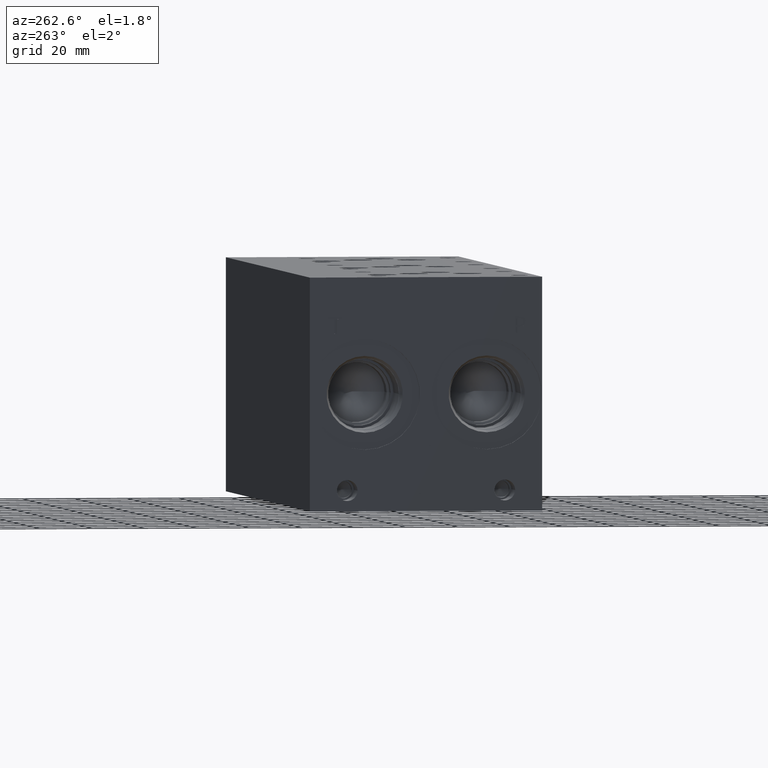
[diagram: clean part render]
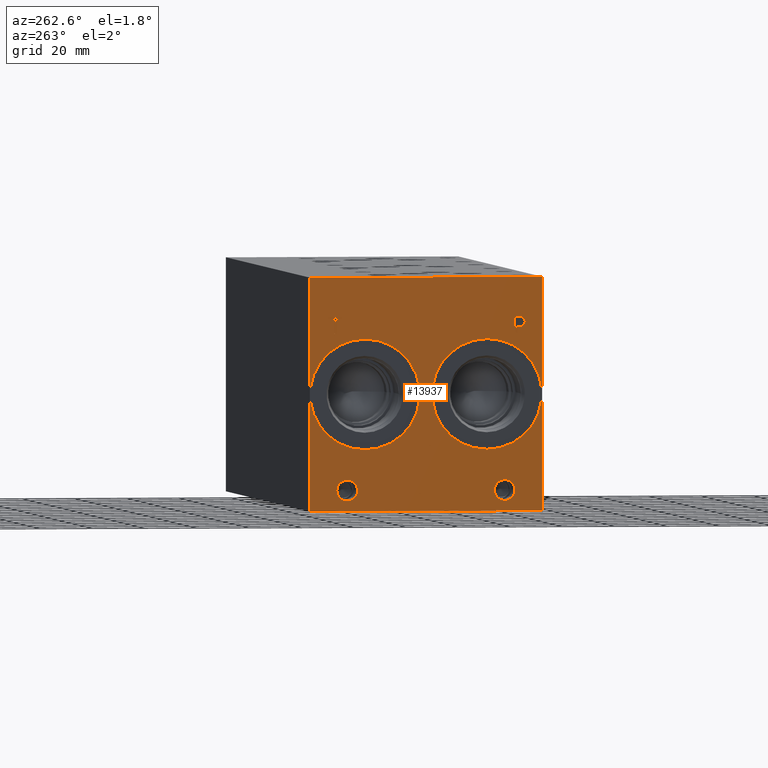
[diagram: same view with one face highlighted and labeled with its STEP entity id]
A machine part, auxiliary view. The second image highlights one B-rep face of the part: STEP entity #13937.
In plain terms, the highlighted planar face has unit normal (-1, 0, 0).
Its self-contained STEP definition (entity closure, byte-faithful):
#377=CIRCLE('',#14555,21.0185);
#378=CIRCLE('',#14556,21.0185);
#379=CIRCLE('',#14557,21.0185);
#380=CIRCLE('',#14558,21.0185);
#381=CIRCLE('',#14559,3.9624);
#382=CIRCLE('',#14560,3.9624);
#383=CIRCLE('',#14561,3.9624);
#384=CIRCLE('',#14562,3.9624);
#1021=B_SPLINE_CURVE_WITH_KNOTS('',2,(#22780,#22781,#22782,#22783),
 .UNSPECIFIED.,.F.,.F.,(3,1,3),(0.,1.,2.),.UNSPECIFIED.);
#1023=B_SPLINE_CURVE_WITH_KNOTS('',2,(#22801,#22802,#22803,#22804),
 .UNSPECIFIED.,.F.,.F.,(3,1,3),(0.,1.,2.),.UNSPECIFIED.);
#1025=B_SPLINE_CURVE_WITH_KNOTS('',2,(#22850,#22851,#22852,#22853),
 .UNSPECIFIED.,.F.,.F.,(3,1,3),(0.,1.,2.),.UNSPECIFIED.);
#1027=B_SPLINE_CURVE_WITH_KNOTS('',2,(#22868,#22869,#22870,#22871),
 .UNSPECIFIED.,.F.,.F.,(3,1,3),(0.,1.,2.),.UNSPECIFIED.);
#1126=FACE_BOUND('',#2439,.T.);
#1127=FACE_BOUND('',#2440,.T.);
#1128=FACE_BOUND('',#2441,.T.);
#1129=FACE_BOUND('',#2442,.T.);
#1130=FACE_BOUND('',#2443,.T.);
#1131=FACE_BOUND('',#2444,.T.);
#1649=FACE_OUTER_BOUND('',#2438,.T.);
#2438=EDGE_LOOP('',(#11134,#11135,#11136,#11137));
#2439=EDGE_LOOP('',(#11138,#11139,#11140,#11141,#11142,#11143,#11144,#11145));
#2440=EDGE_LOOP('',(#11146,#11147));
#2441=EDGE_LOOP('',(#11148,#11149));
#2442=EDGE_LOOP('',(#11150,#11151));
#2443=EDGE_LOOP('',(#11152,#11153));
#2444=EDGE_LOOP('',(#11154,#11155,#11156,#11157,#11158,#11159,#11160,#11161,
#11162));
#2831=LINE('',#18296,#4086);
#3662=LINE('',#22407,#4917);
#3666=LINE('',#22415,#4921);
#3669=LINE('',#22421,#4924);
#3672=LINE('',#22427,#4927);
#3675=LINE('',#22433,#4930);
#3678=LINE('',#22439,#4933);
#3681=LINE('',#22445,#4936);
#3684=LINE('',#22450,#4939);
#3737=LINE('',#22813,#4992);
#3740=LINE('',#22819,#4995);
#3743=LINE('',#22825,#4998);
#3746=LINE('',#22831,#5001);
#3749=LINE('',#22837,#5004);
#3753=LINE('',#22879,#5008);
#3754=LINE('',#22881,#5009);
#3755=LINE('',#22882,#5010);
#4086=VECTOR('',#15209,10.);
#4917=VECTOR('',#16580,10.);
#4921=VECTOR('',#16586,10.);
#4924=VECTOR('',#16591,10.);
#4927=VECTOR('',#16596,10.);
#4930=VECTOR('',#16601,10.);
#4933=VECTOR('',#16606,10.);
#4936=VECTOR('',#16611,10.);
#4939=VECTOR('',#16616,10.);
#4992=VECTOR('',#16715,10.);
#4995=VECTOR('',#16720,10.);
#4998=VECTOR('',#16725,10.);
#5001=VECTOR('',#16730,10.);
#5004=VECTOR('',#16735,10.);
#5008=VECTOR('',#16743,10.);
#5009=VECTOR('',#16744,10.);
#5010=VECTOR('',#16745,10.);
#5327=VERTEX_POINT('',#18289);
#5330=VERTEX_POINT('',#18294);
#6099=VERTEX_POINT('',#22405);
#6100=VERTEX_POINT('',#22406);
#6103=VERTEX_POINT('',#22414);
#6105=VERTEX_POINT('',#22420);
#6107=VERTEX_POINT('',#22426);
#6109=VERTEX_POINT('',#22432);
#6111=VERTEX_POINT('',#22438);
#6113=VERTEX_POINT('',#22444);
#6171=VERTEX_POINT('',#22778);
#6172=VERTEX_POINT('',#22779);
#6175=VERTEX_POINT('',#22800);
#6177=VERTEX_POINT('',#22812);
#6179=VERTEX_POINT('',#22818);
#6181=VERTEX_POINT('',#22824);
#6183=VERTEX_POINT('',#22830);
#6185=VERTEX_POINT('',#22836);
#6187=VERTEX_POINT('',#22849);
#6189=VERTEX_POINT('',#22878);
#6190=VERTEX_POINT('',#22880);
#6191=VERTEX_POINT('',#22883);
#6192=VERTEX_POINT('',#22884);
#6193=VERTEX_POINT('',#22887);
#6194=VERTEX_POINT('',#22888);
#6195=VERTEX_POINT('',#22891);
#6196=VERTEX_POINT('',#22892);
#6197=VERTEX_POINT('',#22895);
#6198=VERTEX_POINT('',#22896);
#6703=EDGE_CURVE('',#5327,#5330,#2831,.T.);
#7832=EDGE_CURVE('',#6099,#6100,#3662,.T.);
#7836=EDGE_CURVE('',#6103,#6099,#3666,.T.);
#7839=EDGE_CURVE('',#6105,#6103,#3669,.T.);
#7842=EDGE_CURVE('',#6107,#6105,#3672,.T.);
#7845=EDGE_CURVE('',#6109,#6107,#3675,.T.);
#7848=EDGE_CURVE('',#6111,#6109,#3678,.T.);
#7851=EDGE_CURVE('',#6113,#6111,#3681,.T.);
#7854=EDGE_CURVE('',#6100,#6113,#3684,.T.);
#7936=EDGE_CURVE('',#6171,#6172,#1021,.T.);
#7940=EDGE_CURVE('',#6175,#6171,#1023,.T.);
#7943=EDGE_CURVE('',#6177,#6175,#3737,.T.);
#7946=EDGE_CURVE('',#6179,#6177,#3740,.T.);
#7949=EDGE_CURVE('',#6181,#6179,#3743,.T.);
#7952=EDGE_CURVE('',#6183,#6181,#3746,.T.);
#7955=EDGE_CURVE('',#6185,#6183,#3749,.T.);
#7958=EDGE_CURVE('',#6187,#6185,#1025,.T.);
#7961=EDGE_CURVE('',#6172,#6187,#1027,.T.);
#7963=EDGE_CURVE('',#6189,#5327,#3753,.T.);
#7964=EDGE_CURVE('',#6190,#5330,#3754,.T.);
#7965=EDGE_CURVE('',#6189,#6190,#3755,.T.);
#7966=EDGE_CURVE('',#6191,#6192,#377,.T.);
#7967=EDGE_CURVE('',#6192,#6191,#378,.T.);
#7968=EDGE_CURVE('',#6193,#6194,#379,.T.);
#7969=EDGE_CURVE('',#6194,#6193,#380,.T.);
#7970=EDGE_CURVE('',#6195,#6196,#381,.T.);
#7971=EDGE_CURVE('',#6196,#6195,#382,.T.);
#7972=EDGE_CURVE('',#6197,#6198,#383,.T.);
#7973=EDGE_CURVE('',#6198,#6197,#384,.T.);
#11134=ORIENTED_EDGE('',*,*,#7963,.T.);
#11135=ORIENTED_EDGE('',*,*,#6703,.T.);
#11136=ORIENTED_EDGE('',*,*,#7964,.F.);
#11137=ORIENTED_EDGE('',*,*,#7965,.F.);
#11138=ORIENTED_EDGE('',*,*,#7832,.T.);
#11139=ORIENTED_EDGE('',*,*,#7854,.T.);
#11140=ORIENTED_EDGE('',*,*,#7851,.T.);
#11141=ORIENTED_EDGE('',*,*,#7848,.T.);
#11142=ORIENTED_EDGE('',*,*,#7845,.T.);
#11143=ORIENTED_EDGE('',*,*,#7842,.T.);
#11144=ORIENTED_EDGE('',*,*,#7839,.T.);
#11145=ORIENTED_EDGE('',*,*,#7836,.T.);
#11146=ORIENTED_EDGE('',*,*,#7966,.T.);
#11147=ORIENTED_EDGE('',*,*,#7967,.T.);
#11148=ORIENTED_EDGE('',*,*,#7968,.T.);
#11149=ORIENTED_EDGE('',*,*,#7969,.T.);
#11150=ORIENTED_EDGE('',*,*,#7970,.T.);
#11151=ORIENTED_EDGE('',*,*,#7971,.T.);
#11152=ORIENTED_EDGE('',*,*,#7972,.T.);
#11153=ORIENTED_EDGE('',*,*,#7973,.T.);
#11154=ORIENTED_EDGE('',*,*,#7936,.T.);
#11155=ORIENTED_EDGE('',*,*,#7961,.T.);
#11156=ORIENTED_EDGE('',*,*,#7958,.T.);
#11157=ORIENTED_EDGE('',*,*,#7955,.T.);
#11158=ORIENTED_EDGE('',*,*,#7952,.T.);
#11159=ORIENTED_EDGE('',*,*,#7949,.T.);
#11160=ORIENTED_EDGE('',*,*,#7946,.T.);
#11161=ORIENTED_EDGE('',*,*,#7943,.T.);
#11162=ORIENTED_EDGE('',*,*,#7940,.T.);
#12878=PLANE('',#14554);
#13937=ADVANCED_FACE('',(#1649,#1126,#1127,#1128,#1129,#1130,#1131),#12878,
 .T.);
#14554=AXIS2_PLACEMENT_3D('',#22877,#16741,#16742);
#14555=AXIS2_PLACEMENT_3D('',#22885,#16746,#16747);
#14556=AXIS2_PLACEMENT_3D('',#22886,#16748,#16749);
#14557=AXIS2_PLACEMENT_3D('',#22889,#16750,#16751);
#14558=AXIS2_PLACEMENT_3D('',#22890,#16752,#16753);
#14559=AXIS2_PLACEMENT_3D('',#22893,#16754,#16755);
#14560=AXIS2_PLACEMENT_3D('',#22894,#16756,#16757);
#14561=AXIS2_PLACEMENT_3D('',#22897,#16758,#16759);
#14562=AXIS2_PLACEMENT_3D('',#22898,#16760,#16761);
#15209=DIRECTION('',(0.,0.,1.));
#16580=DIRECTION('',(0.,1.,1.0524411238433E-14));
#16586=DIRECTION('',(0.,3.17280044688052E-15,-1.));
#16591=DIRECTION('',(0.,1.,4.16909044227778E-15));
#16596=DIRECTION('',(0.,0.,-1.));
#16601=DIRECTION('',(0.,-1.,-3.47984565141734E-15));
#16606=DIRECTION('',(0.,0.,1.));
#16611=DIRECTION('',(0.,1.,0.));
#16616=DIRECTION('',(0.,-3.17280044688052E-15,1.));
#16715=DIRECTION('',(0.,-1.,-5.56775304226775E-15));
#16720=DIRECTION('',(0.,-3.14708893596576E-15,1.));
#16725=DIRECTION('',(0.,1.,0.));
#16730=DIRECTION('',(0.,3.75218139804999E-15,-1.));
#16735=DIRECTION('',(0.,1.,1.24172909575755E-14));
#16741=DIRECTION('center_axis',(-1.,0.,0.));
#16742=DIRECTION('ref_axis',(0.,-1.,0.));
#16743=DIRECTION('',(0.,-1.,0.));
#16744=DIRECTION('',(0.,-1.,0.));
#16745=DIRECTION('',(0.,0.,1.));
#16746=DIRECTION('center_axis',(1.,0.,0.));
#16747=DIRECTION('ref_axis',(0.,0.,1.));
#16748=DIRECTION('center_axis',(1.,0.,0.));
#16749=DIRECTION('ref_axis',(0.,0.,1.));
#16750=DIRECTION('center_axis',(1.,0.,0.));
#16751=DIRECTION('ref_axis',(0.,0.,1.));
#16752=DIRECTION('center_axis',(1.,0.,0.));
#16753=DIRECTION('ref_axis',(0.,0.,1.));
#16754=DIRECTION('center_axis',(1.,0.,0.));
#16755=DIRECTION('ref_axis',(0.,1.,0.));
#16756=DIRECTION('center_axis',(1.,0.,0.));
#16757=DIRECTION('ref_axis',(0.,1.,0.));
#16758=DIRECTION('center_axis',(1.,0.,0.));
#16759=DIRECTION('ref_axis',(0.,1.,0.));
#16760=DIRECTION('center_axis',(1.,0.,0.));
#16761=DIRECTION('ref_axis',(0.,1.,0.));
#18289=CARTESIAN_POINT('',(0.,0.,0.));
#18294=CARTESIAN_POINT('',(0.,0.,88.9));
#18296=CARTESIAN_POINT('',(0.,0.,0.));
#22405=CARTESIAN_POINT('',(0.,78.787084728547,67.46875));
#22406=CARTESIAN_POINT('',(0.,79.6310069200865,67.46875));
#22407=CARTESIAN_POINT('',(0.,83.8435423642731,67.46875));
#22414=CARTESIAN_POINT('',(0.,78.787084728547,73.0674533194815));
#22415=CARTESIAN_POINT('',(0.,78.7870847285471,36.5337266597407));
#22420=CARTESIAN_POINT('',(0.,76.6566957816119,73.0674533194815));
#22421=CARTESIAN_POINT('',(0.,82.7783478908058,73.0674533194815));
#22426=CARTESIAN_POINT('',(0.,76.6566957816119,73.8187499046325));
#22427=CARTESIAN_POINT('',(0.,76.6566957816119,36.9093749523163));
#22432=CARTESIAN_POINT('',(0.,81.7613958670216,73.8187499046326));
#22433=CARTESIAN_POINT('',(0.,85.3306979335107,73.8187499046326));
#22438=CARTESIAN_POINT('',(0.,81.7613958670216,73.0674533194815));
#22439=CARTESIAN_POINT('',(0.,81.7613958670216,36.5337266597408));
#22444=CARTESIAN_POINT('',(0.,79.6310069200865,73.0674533194815));
#22445=CARTESIAN_POINT('',(0.,84.2655034600432,73.0674533194815));
#22450=CARTESIAN_POINT('',(0.,79.6310069200866,33.734375));
#22778=CARTESIAN_POINT('',(0.,7.21193279764059,73.4225181439707));
#22779=CARTESIAN_POINT('',(0.,6.455490345468,71.9044873726039));
#22780=CARTESIAN_POINT('Ctrl Pts',(0.,7.21193279764059,73.4225181439707));
#22781=CARTESIAN_POINT('Ctrl Pts',(0.,6.85686797315142,73.1806623939563));
#22782=CARTESIAN_POINT('Ctrl Pts',(0.,6.455490345468,72.4345116758269));
#22783=CARTESIAN_POINT('Ctrl Pts',(0.,6.455490345468,71.9044873726039));
#22800=CARTESIAN_POINT('',(0.,8.87404784561168,73.8187499046325));
#22801=CARTESIAN_POINT('Ctrl Pts',(0.,8.87404784561168,73.8187499046325));
#22802=CARTESIAN_POINT('Ctrl Pts',(0.,8.30800247323763,73.8187499046325));
#22803=CARTESIAN_POINT('Ctrl Pts',(0.,7.51553895191395,73.6334986918556));
#22804=CARTESIAN_POINT('Ctrl Pts',(0.,7.21193279764059,73.4225181439707));
#22812=CARTESIAN_POINT('',(0.,10.4692666223022,73.8187499046326));
#22813=CARTESIAN_POINT('',(0.,49.6846333111509,73.8187499046328));
#22818=CARTESIAN_POINT('',(0.,10.4692666223022,67.46875));
#22819=CARTESIAN_POINT('',(0.,10.4692666223023,33.7343749999999));
#22824=CARTESIAN_POINT('',(0.,9.62534443076272,67.46875));
#22825=CARTESIAN_POINT('',(0.,49.2626722153814,67.46875));
#22830=CARTESIAN_POINT('',(0.,9.62534443076271,69.8358488299279));
#22831=CARTESIAN_POINT('',(0.,9.62534443076284,34.9179244149638));
#22836=CARTESIAN_POINT('',(0.,8.91006891476277,69.8358488299278));
#22837=CARTESIAN_POINT('',(0.,48.9050344573809,69.8358488299283));
#22849=CARTESIAN_POINT('',(0.,7.01124398379889,70.4945198086904));
#22850=CARTESIAN_POINT('Ctrl Pts',(0.,7.01124398379889,70.4945198086904));
#22851=CARTESIAN_POINT('Ctrl Pts',(0.,7.34057947318016,70.1703301863307));
#22852=CARTESIAN_POINT('Ctrl Pts',(0.,8.2308144679139,69.8358488299278));
#22853=CARTESIAN_POINT('Ctrl Pts',(0.,8.91006891476277,69.8358488299278));
#22868=CARTESIAN_POINT('Ctrl Pts',(0.,6.455490345468,71.9044873726039));
#22869=CARTESIAN_POINT('Ctrl Pts',(0.,6.455490345468,71.4928180108773));
#22870=CARTESIAN_POINT('Ctrl Pts',(0.,6.7488047656982,70.7518131597695));
#22871=CARTESIAN_POINT('Ctrl Pts',(0.,7.01124398379889,70.4945198086904));
#22877=CARTESIAN_POINT('Origin',(0.,88.9,0.));
#22878=CARTESIAN_POINT('',(0.,88.9,0.));
#22879=CARTESIAN_POINT('',(0.,88.9,0.));
#22880=CARTESIAN_POINT('',(0.,88.9,88.9));
#22881=CARTESIAN_POINT('',(0.,88.9,88.9));
#22882=CARTESIAN_POINT('',(0.,88.9,0.));
#22883=CARTESIAN_POINT('',(0.,21.082,65.4685));
#22884=CARTESIAN_POINT('',(0.,21.082,23.4315));
#22885=CARTESIAN_POINT('Origin',(0.,21.082,44.45));
#22886=CARTESIAN_POINT('Origin',(0.,21.082,44.45));
#22887=CARTESIAN_POINT('',(0.,67.818,65.4685));
#22888=CARTESIAN_POINT('',(0.,67.818,23.4315));
#22889=CARTESIAN_POINT('Origin',(0.,67.818,44.45));
#22890=CARTESIAN_POINT('Origin',(0.,67.818,44.45));
#22891=CARTESIAN_POINT('',(0.,18.2372,7.92479999999999));
#22892=CARTESIAN_POINT('',(0.,10.3124,7.92479999999999));
#22893=CARTESIAN_POINT('Origin',(0.,14.2748,7.92479999999999));
#22894=CARTESIAN_POINT('Origin',(0.,14.2748,7.92479999999999));
#22895=CARTESIAN_POINT('',(0.,78.5876,7.92479999999999));
#22896=CARTESIAN_POINT('',(0.,70.6628,7.92479999999999));
#22897=CARTESIAN_POINT('Origin',(0.,74.6252,7.92479999999999));
#22898=CARTESIAN_POINT('Origin',(0.,74.6252,7.92479999999999));